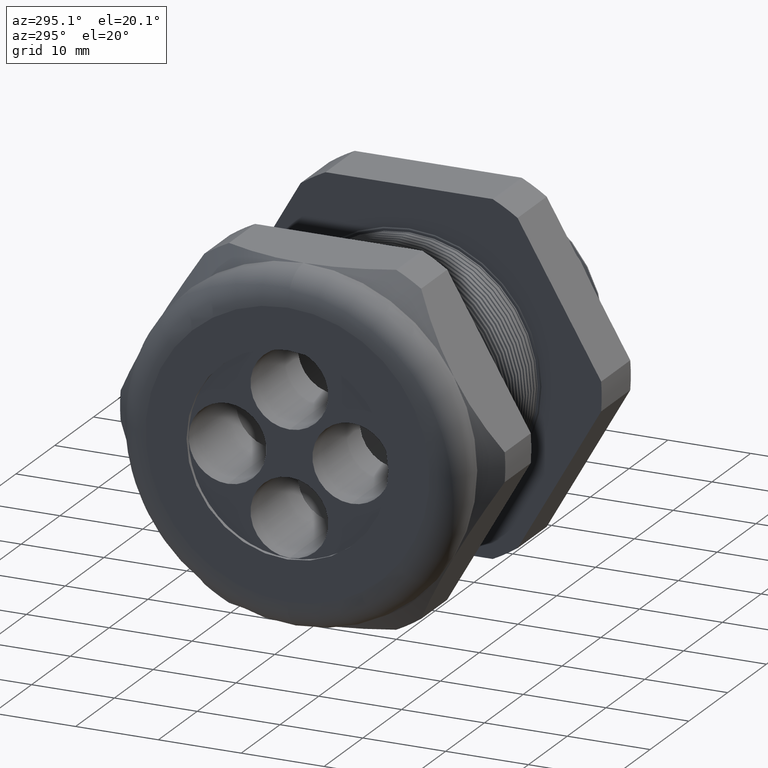
[diagram: clean part render]
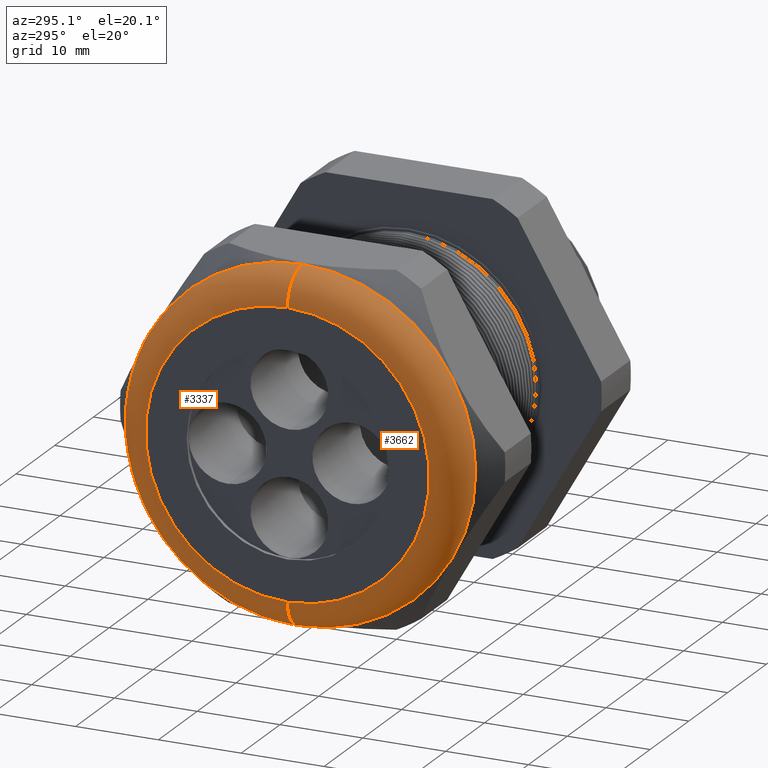
[diagram: same view with one multi-face feature highlighted, each face labeled with its STEP entity id]
A machine part, auxiliary view. The highlighted faces form ONE feature: a constant-radius fillet chain: 2 tangent blend faces with common blend radius 3.81 mm. The faces share edges in the B-rep.
Their STEP definitions:
[1] entity #3662 (Torus):
#21 = CARTESIAN_POINT ( 'NONE',  ( -1.689999999999999900, 1.010333609296566100E-016, 0.8249999999999998400 ) ) ;
#37 = CARTESIAN_POINT ( 'NONE',  ( -1.840000000000000100, 0.0000000000000000000, 0.6749999999999997100 ) ) ;
#73 = DIRECTION ( 'NONE',  ( 0.0000000000000000000, 0.0000000000000000000, -1.000000000000000000 ) ) ;
#74 = DIRECTION ( 'NONE',  ( 0.0000000000000000000, -1.000000000000000000, 0.0000000000000000000 ) ) ;
#75 = CARTESIAN_POINT ( 'NONE',  ( -1.689999999999999900, 0.0000000000000000000, 0.6749999999999997100 ) ) ;
#76 = AXIS2_PLACEMENT_3D ( 'NONE', #75, #74, #73 ) ;
#81 = CIRCLE ( 'NONE', #76, 0.1499999999999999700 ) ;
#84 = CARTESIAN_POINT ( 'NONE',  ( -1.840000000000000100, 9.184850993605146000E-017, -0.6749999999999997100 ) ) ;
#107 = DIRECTION ( 'NONE',  ( 0.0000000000000000000, -1.224646799147353200E-016, 1.000000000000000000 ) ) ;
#108 = DIRECTION ( 'NONE',  ( 0.0000000000000000000, 1.000000000000000000, 1.224646799147353200E-016 ) ) ;
#109 = CARTESIAN_POINT ( 'NONE',  ( -1.689999999999999900, 8.266365894244631900E-017, -0.6749999999999997100 ) ) ;
#110 = AXIS2_PLACEMENT_3D ( 'NONE', #109, #108, #107 ) ;
#111 = CIRCLE ( 'NONE', #110, 0.1499999999999999700 ) ;
#573 = FACE_OUTER_BOUND ( 'NONE', #1953, .T. ) ;
#577 = CARTESIAN_POINT ( 'NONE',  ( -1.689999999999999900, 0.0000000000000000000, 0.0000000000000000000 ) ) ;
#636 = DIRECTION ( 'NONE',  ( 0.0000000000000000000, 0.0000000000000000000, 1.000000000000000000 ) ) ;
#637 = DIRECTION ( 'NONE',  ( -1.000000000000000000, 0.0000000000000000000, 0.0000000000000000000 ) ) ;
#638 = AXIS2_PLACEMENT_3D ( 'NONE', #577, #637, #636 ) ;
#639 = TOROIDAL_SURFACE ( 'NONE', #638, 0.6749999999999997100, 0.1499999999999999900 ) ;
#1953 = EDGE_LOOP ( 'NONE', ( #2178, #3511, #3505, #3644 ) ) ;
#2178 = ORIENTED_EDGE ( 'NONE', *, *, #3369, .F. ) ;
#2734 = EDGE_CURVE ( 'NONE', #3357, #3348, #6208, .T. ) ;
#2970 = EDGE_CURVE ( 'NONE', #3324, #3332, #6664, .T. ) ;
#3324 = VERTEX_POINT ( 'NONE', #21 ) ;
#3332 = VERTEX_POINT ( 'NONE', #7439 ) ;
#3348 = VERTEX_POINT ( 'NONE', #37 ) ;
#3357 = VERTEX_POINT ( 'NONE', #84 ) ;
#3359 = EDGE_CURVE ( 'NONE', #3324, #3348, #81, .T. ) ;
#3369 = EDGE_CURVE ( 'NONE', #3332, #3357, #111, .T. ) ;
#3505 = ORIENTED_EDGE ( 'NONE', *, *, #3359, .T. ) ;
#3511 = ORIENTED_EDGE ( 'NONE', *, *, #2970, .F. ) ;
#3644 = ORIENTED_EDGE ( 'NONE', *, *, #2734, .F. ) ;
#3662 = ADVANCED_FACE ( 'NONE', ( #573 ), #639, .T. ) ;
#6204 = DIRECTION ( 'NONE',  ( 0.0000000000000000000, 0.0000000000000000000, 1.000000000000000000 ) ) ;
#6205 = DIRECTION ( 'NONE',  ( -1.000000000000000000, 0.0000000000000000000, 0.0000000000000000000 ) ) ;
#6206 = CARTESIAN_POINT ( 'NONE',  ( -1.840000000000000100, 0.0000000000000000000, 0.0000000000000000000 ) ) ;
#6207 = AXIS2_PLACEMENT_3D ( 'NONE', #6206, #6205, #6204 ) ;
#6208 = CIRCLE ( 'NONE', #6207, 0.6749999999999997100 ) ;
#6661 = DIRECTION ( 'NONE',  ( 0.0000000000000000000, 0.0000000000000000000, 1.000000000000000000 ) ) ;
#6662 = DIRECTION ( 'NONE',  ( 1.000000000000000000, 0.0000000000000000000, 0.0000000000000000000 ) ) ;
#6663 = AXIS2_PLACEMENT_3D ( 'NONE', #6669, #6662, #6661 ) ;
#6664 = CIRCLE ( 'NONE', #6663, 0.8249999999999998400 ) ;
#6669 = CARTESIAN_POINT ( 'NONE',  ( -1.689999999999999900, 0.0000000000000000000, 0.0000000000000000000 ) ) ;
#7439 = CARTESIAN_POINT ( 'NONE',  ( -1.689999999999999900, 0.0000000000000000000, -0.8249999999999998400 ) ) ;
[2] entity #3337 (Torus):
#21 = CARTESIAN_POINT ( 'NONE',  ( -1.689999999999999900, 1.010333609296566100E-016, 0.8249999999999998400 ) ) ;
#28 = DIRECTION ( 'NONE',  ( 0.0000000000000000000, 0.0000000000000000000, 1.000000000000000000 ) ) ;
#29 = DIRECTION ( 'NONE',  ( -1.000000000000000000, 0.0000000000000000000, 0.0000000000000000000 ) ) ;
#30 = CARTESIAN_POINT ( 'NONE',  ( -1.840000000000000100, 0.0000000000000000000, 0.0000000000000000000 ) ) ;
#31 = AXIS2_PLACEMENT_3D ( 'NONE', #30, #29, #28 ) ;
#32 = CIRCLE ( 'NONE', #31, 0.6749999999999997100 ) ;
#37 = CARTESIAN_POINT ( 'NONE',  ( -1.840000000000000100, 0.0000000000000000000, 0.6749999999999997100 ) ) ;
#50 = DIRECTION ( 'NONE',  ( 0.0000000000000000000, 0.0000000000000000000, 1.000000000000000000 ) ) ;
#51 = DIRECTION ( 'NONE',  ( 1.000000000000000000, 0.0000000000000000000, 0.0000000000000000000 ) ) ;
#52 = CARTESIAN_POINT ( 'NONE',  ( -1.689999999999999900, 0.0000000000000000000, 0.0000000000000000000 ) ) ;
#53 = AXIS2_PLACEMENT_3D ( 'NONE', #52, #51, #50 ) ;
#54 = CIRCLE ( 'NONE', #53, 0.8249999999999998400 ) ;
#55 = DIRECTION ( 'NONE',  ( 0.0000000000000000000, 0.0000000000000000000, 1.000000000000000000 ) ) ;
#56 = DIRECTION ( 'NONE',  ( -1.000000000000000000, 0.0000000000000000000, 0.0000000000000000000 ) ) ;
#57 = AXIS2_PLACEMENT_3D ( 'NONE', #7432, #56, #55 ) ;
#58 = TOROIDAL_SURFACE ( 'NONE', #57, 0.6749999999999997100, 0.1499999999999999900 ) ;
#73 = DIRECTION ( 'NONE',  ( 0.0000000000000000000, 0.0000000000000000000, -1.000000000000000000 ) ) ;
#74 = DIRECTION ( 'NONE',  ( 0.0000000000000000000, -1.000000000000000000, 0.0000000000000000000 ) ) ;
#75 = CARTESIAN_POINT ( 'NONE',  ( -1.689999999999999900, 0.0000000000000000000, 0.6749999999999997100 ) ) ;
#76 = AXIS2_PLACEMENT_3D ( 'NONE', #75, #74, #73 ) ;
#81 = CIRCLE ( 'NONE', #76, 0.1499999999999999700 ) ;
#84 = CARTESIAN_POINT ( 'NONE',  ( -1.840000000000000100, 9.184850993605146000E-017, -0.6749999999999997100 ) ) ;
#107 = DIRECTION ( 'NONE',  ( 0.0000000000000000000, -1.224646799147353200E-016, 1.000000000000000000 ) ) ;
#108 = DIRECTION ( 'NONE',  ( 0.0000000000000000000, 1.000000000000000000, 1.224646799147353200E-016 ) ) ;
#109 = CARTESIAN_POINT ( 'NONE',  ( -1.689999999999999900, 8.266365894244631900E-017, -0.6749999999999997100 ) ) ;
#110 = AXIS2_PLACEMENT_3D ( 'NONE', #109, #108, #107 ) ;
#111 = CIRCLE ( 'NONE', #110, 0.1499999999999999700 ) ;
#3324 = VERTEX_POINT ( 'NONE', #21 ) ;
#3332 = VERTEX_POINT ( 'NONE', #7439 ) ;
#3334 = ORIENTED_EDGE ( 'NONE', *, *, #3338, .F. ) ;
#3337 = ADVANCED_FACE ( 'NONE', ( #7433 ), #58, .T. ) ;
#3338 = EDGE_CURVE ( 'NONE', #3332, #3324, #54, .T. ) ;
#3343 = EDGE_LOOP ( 'NONE', ( #3334, #3370, #3355, #3349 ) ) ;
#3348 = VERTEX_POINT ( 'NONE', #37 ) ;
#3349 = ORIENTED_EDGE ( 'NONE', *, *, #3359, .F. ) ;
#3352 = EDGE_CURVE ( 'NONE', #3348, #3357, #32, .T. ) ;
#3355 = ORIENTED_EDGE ( 'NONE', *, *, #3352, .F. ) ;
#3357 = VERTEX_POINT ( 'NONE', #84 ) ;
#3359 = EDGE_CURVE ( 'NONE', #3324, #3348, #81, .T. ) ;
#3369 = EDGE_CURVE ( 'NONE', #3332, #3357, #111, .T. ) ;
#3370 = ORIENTED_EDGE ( 'NONE', *, *, #3369, .T. ) ;
#7432 = CARTESIAN_POINT ( 'NONE',  ( -1.689999999999999900, 0.0000000000000000000, 0.0000000000000000000 ) ) ;
#7433 = FACE_OUTER_BOUND ( 'NONE', #3343, .T. ) ;
#7439 = CARTESIAN_POINT ( 'NONE',  ( -1.689999999999999900, 0.0000000000000000000, -0.8249999999999998400 ) ) ;